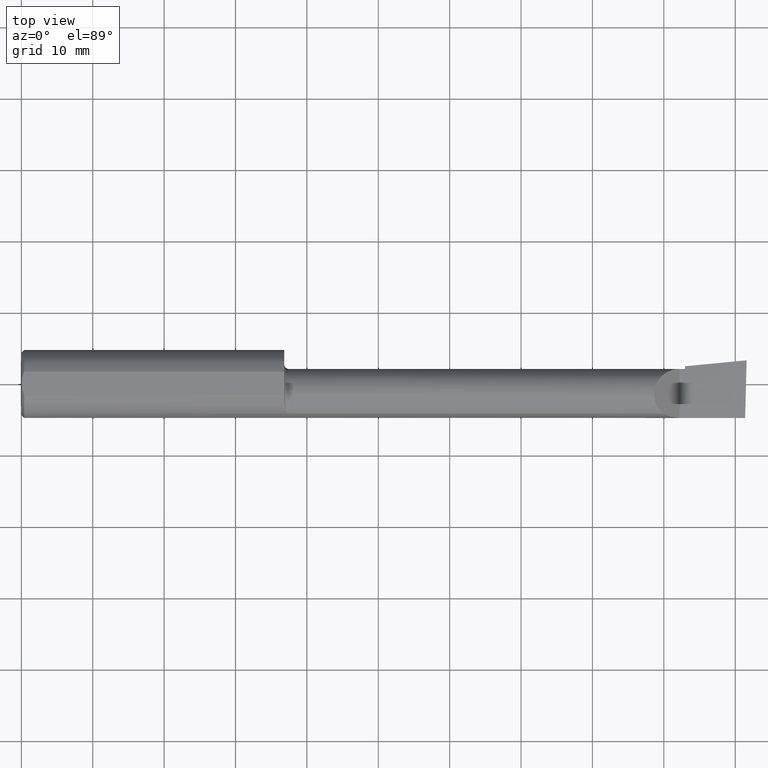
[diagram: clean part render]
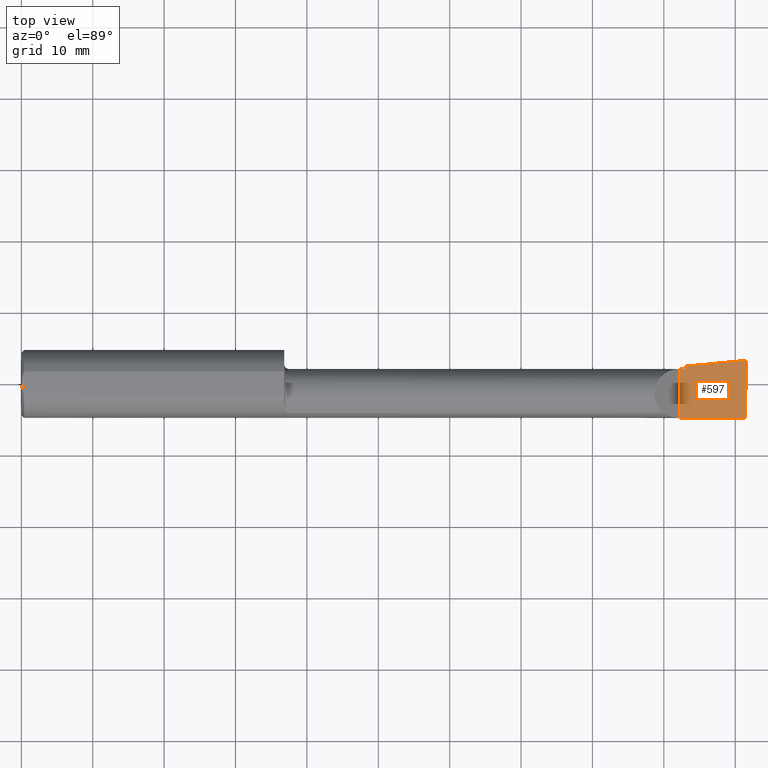
[diagram: same view with one face highlighted and labeled with its STEP entity id]
A machine part, top view. The second image highlights one B-rep face of the part: STEP entity #597.
In plain terms, the highlighted planar face has unit normal (-0, 0, -1).
Its self-contained STEP definition (entity closure, byte-faithful):
#6 = DIRECTION ( 'NONE',  ( -0.000000000000000000, 1.000000000000000000, -0.000000000000000000 ) ) ;
#20 = VERTEX_POINT ( 'NONE', #494 ) ;
#47 = DIRECTION ( 'NONE',  ( 1.000000000000000000, 4.268512490100411279E-18, 0.000000000000000000 ) ) ;
#63 = CARTESIAN_POINT ( 'NONE',  ( 3.629999999999999893, -0.2500000000000000555, -1.383850883036508279E-16 ) ) ;
#66 = EDGE_CURVE ( 'NONE', #313, #322, #447, .T. ) ;
#67 = EDGE_LOOP ( 'NONE', ( #267, #513, #276, #603, #520, #213 ) ) ;
#85 = LINE ( 'NONE', #101, #134 ) ;
#94 = CARTESIAN_POINT ( 'NONE',  ( 2.047026079080032090, -0.05740000000000000657, 4.132328855998353457E-20 ) ) ;
#101 = CARTESIAN_POINT ( 'NONE',  ( 3.990039159128060398, -0.2497391662021650749, -1.698694533788567331E-16 ) ) ;
#103 = DIRECTION ( 'NONE',  ( -1.000000000000000000, 0.000000000000000000, 8.744705756855574331E-17 ) ) ;
#106 = CARTESIAN_POINT ( 'NONE',  ( 4.000000000000000000, -0.2500000000000000555, -1.707404996040164512E-16 ) ) ;
#115 = LINE ( 'NONE', #407, #231 ) ;
#134 = VECTOR ( 'NONE', #499, 39.37007874015748854 ) ;
#146 = LINE ( 'NONE', #94, #412 ) ;
#179 = CARTESIAN_POINT ( 'NONE',  ( 3.629999999999999893, 0.08264999999999983471, -1.383850883036508279E-16 ) ) ;
#193 = VERTEX_POINT ( 'NONE', #551 ) ;
#206 = VECTOR ( 'NONE', #47, 39.37007874015748143 ) ;
#211 = PLANE ( 'NONE',  #489 ) ;
#213 = ORIENTED_EDGE ( 'NONE', *, *, #521, .F. ) ;
#231 = VECTOR ( 'NONE', #457, 39.37007874015748143 ) ;
#244 = DIRECTION ( 'NONE',  ( -1.000000000000000000, -0.000000000000000000, -0.000000000000000000 ) ) ;
#249 = VECTOR ( 'NONE', #244, 39.37007874015748143 ) ;
#267 = ORIENTED_EDGE ( 'NONE', *, *, #396, .F. ) ;
#276 = ORIENTED_EDGE ( 'NONE', *, *, #448, .F. ) ;
#295 = CARTESIAN_POINT ( 'NONE',  ( 3.991672876940992154, -0.1873499999999999888, -1.700367819150454743E-16 ) ) ;
#306 = VECTOR ( 'NONE', #6, 39.37007874015748143 ) ;
#313 = VERTEX_POINT ( 'NONE', #179 ) ;
#322 = VERTEX_POINT ( 'NONE', #572 ) ;
#352 = CARTESIAN_POINT ( 'NONE',  ( 3.629999999999999893, -0.1873499999999999888, -1.383850883036508279E-16 ) ) ;
#383 = VERTEX_POINT ( 'NONE', #295 ) ;
#391 = CARTESIAN_POINT ( 'NONE',  ( 1.565719721143680372E-32, -0.1873499999999999610, 1.790477306702064235E-16 ) ) ;
#394 = LINE ( 'NONE', #391, #249 ) ;
#396 = EDGE_CURVE ( 'NONE', #383, #459, #394, .T. ) ;
#407 = CARTESIAN_POINT ( 'NONE',  ( 3.659999999999999698, -0.2500000000000000555, -1.410085000307074674E-16 ) ) ;
#412 = VECTOR ( 'NONE', #496, 39.37007874015748143 ) ;
#443 = CARTESIAN_POINT ( 'NONE',  ( -5.978051742385467392E-19, 0.08264999999999995961, 1.790477306702064235E-16 ) ) ;
#447 = LINE ( 'NONE', #443, #206 ) ;
#448 = EDGE_CURVE ( 'NONE', #20, #193, #146, .T. ) ;
#454 = FACE_OUTER_BOUND ( 'NONE', #67, .T. ) ;
#457 = DIRECTION ( 'NONE',  ( -4.268512490100411279E-18, 1.000000000000000000, 3.732688574539098315E-34 ) ) ;
#459 = VERTEX_POINT ( 'NONE', #352 ) ;
#486 = EDGE_CURVE ( 'NONE', #383, #193, #85, .T. ) ;
#489 = AXIS2_PLACEMENT_3D ( 'NONE', #106, #554, #103 ) ;
#494 = CARTESIAN_POINT ( 'NONE',  ( 3.659999999999999698, 0.09791172361284167236, 1.790479824980329151E-16 ) ) ;
#496 = DIRECTION ( 'NONE',  ( 0.9953961983671787417, 0.09584575252022461966, -8.704446866213619353E-17 ) ) ;
#499 = DIRECTION ( 'NONE',  ( 0.02617694830779359119, 0.9996573249755593693, -2.681093642708627860E-18 ) ) ;
#504 = LINE ( 'NONE', #63, #306 ) ;
#513 = ORIENTED_EDGE ( 'NONE', *, *, #486, .T. ) ;
#520 = ORIENTED_EDGE ( 'NONE', *, *, #66, .F. ) ;
#521 = EDGE_CURVE ( 'NONE', #459, #313, #504, .T. ) ;
#551 = CARTESIAN_POINT ( 'NONE',  ( 3.999999999999979572, 0.1306500000000239414, 8.420921440470090843E-14 ) ) ;
#554 = DIRECTION ( 'NONE',  ( -8.744705756855574331E-17, 0.000000000000000000, -1.000000000000000000 ) ) ;
#572 = CARTESIAN_POINT ( 'NONE',  ( 3.659999999999999698, 0.08265000000000022329, 1.790477306702067193E-16 ) ) ;
#597 = ADVANCED_FACE ( 'NONE', ( #454 ), #211, .F. ) ;
#603 = ORIENTED_EDGE ( 'NONE', *, *, #606, .F. ) ;
#606 = EDGE_CURVE ( 'NONE', #322, #20, #115, .T. ) ;